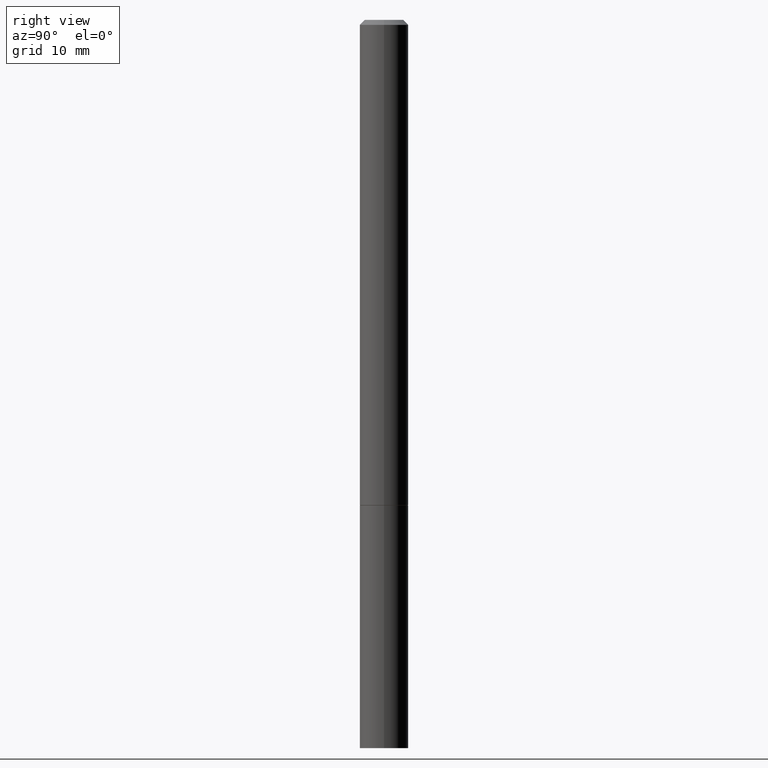
[diagram: clean part render]
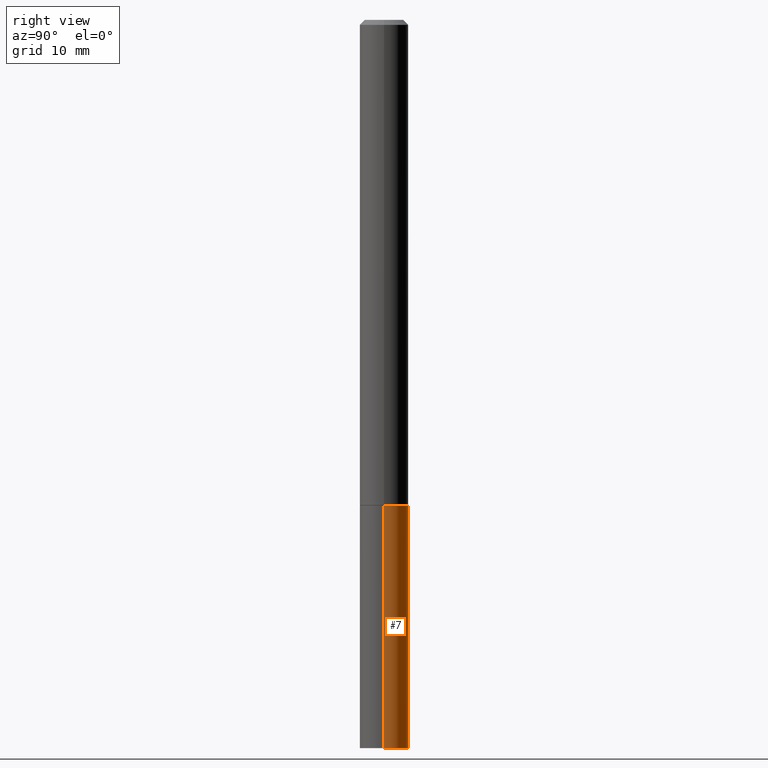
[diagram: same view with one face highlighted and labeled with its STEP entity id]
A machine part, right view. The second image highlights one B-rep face of the part: STEP entity #7.
In plain terms, the highlighted cylindrical surface (edge-blend (fillet) strip) has radius 2.5006 mm, axis along (-0, 0, 1).
Its self-contained STEP definition (entity closure, byte-faithful):
#7 = ADVANCED_FACE ( 'NONE', ( #247 ), #28, .T. ) ;
#16 = CIRCLE ( 'NONE', #225, 0.09844999999999999585 ) ;
#21 = DIRECTION ( 'NONE',  ( 1.000000000000000000, -6.982962677686266711E-15, 4.876176775795936353E-29 ) ) ;
#28 = CYLINDRICAL_SURFACE ( 'NONE', #129, 0.09844999999999999585 ) ;
#37 = EDGE_CURVE ( 'NONE', #53, #201, #44, .T. ) ;
#39 = CARTESIAN_POINT ( 'NONE',  ( 0.09844999999999999585, -1.099711877295425267E-14, -2.952799999999999869 ) ) ;
#44 = LINE ( 'NONE', #205, #187 ) ;
#47 = AXIS2_PLACEMENT_3D ( 'NONE', #185, #220, #77 ) ;
#53 = VERTEX_POINT ( 'NONE', #39 ) ;
#58 = ORIENTED_EDGE ( 'NONE', *, *, #252, .F. ) ;
#77 = DIRECTION ( 'NONE',  ( 1.000000000000000000, -6.982962677686274599E-15, 0.000000000000000000 ) ) ;
#78 = CARTESIAN_POINT ( 'NONE',  ( 4.813905344975440714E-29, -6.872981015512730918E-15, -1.968499999999999694 ) ) ;
#81 = CARTESIAN_POINT ( 'NONE',  ( -0.09844999999999999585, 6.995293233558186035E-16, -4.842691596355954042E-30 ) ) ;
#82 = VERTEX_POINT ( 'NONE', #178 ) ;
#97 = CARTESIAN_POINT ( 'NONE',  ( -0.09844999999999999585, -7.891784233068567007E-15, -1.968499999999999694 ) ) ;
#106 = VERTEX_POINT ( 'NONE', #97 ) ;
#113 = ORIENTED_EDGE ( 'NONE', *, *, #37, .F. ) ;
#120 = DIRECTION ( 'NONE',  ( -2.445468806185136877E-29, 3.491481338843145188E-15, 1.000000000000000000 ) ) ;
#128 = LINE ( 'NONE', #81, #245 ) ;
#129 = AXIS2_PLACEMENT_3D ( 'NONE', #274, #254, #21 ) ;
#135 = ORIENTED_EDGE ( 'NONE', *, *, #284, .T. ) ;
#143 = ORIENTED_EDGE ( 'NONE', *, *, #194, .T. ) ;
#178 = CARTESIAN_POINT ( 'NONE',  ( -0.09844999999999999585, -7.891784233068567007E-15, -2.952799999999999869 ) ) ;
#185 = CARTESIAN_POINT ( 'NONE',  ( 7.220980290903470182E-29, -1.030964609733603853E-14, -2.952799999999999869 ) ) ;
#187 = VECTOR ( 'NONE', #120, 39.37007874015748143 ) ;
#194 = EDGE_CURVE ( 'NONE', #82, #106, #128, .T. ) ;
#201 = VERTEX_POINT ( 'NONE', #240 ) ;
#205 = CARTESIAN_POINT ( 'NONE',  ( 0.09844999999999999585, -6.874726756182129545E-16, 4.800596035771099214E-30 ) ) ;
#207 = CIRCLE ( 'NONE', #47, 0.09844999999999999585 ) ;
#216 = DIRECTION ( 'NONE',  ( -2.445468806185136877E-29, 3.491481338843145188E-15, 1.000000000000000000 ) ) ;
#220 = DIRECTION ( 'NONE',  ( -2.445468806185136597E-29, 3.491481338843145583E-15, 1.000000000000000000 ) ) ;
#225 = AXIS2_PLACEMENT_3D ( 'NONE', #78, #297, #328 ) ;
#240 = CARTESIAN_POINT ( 'NONE',  ( 0.09844999999999999585, -7.560453691130944267E-15, -1.968499999999999694 ) ) ;
#245 = VECTOR ( 'NONE', #216, 39.37007874015748143 ) ;
#247 = FACE_OUTER_BOUND ( 'NONE', #310, .T. ) ;
#252 = EDGE_CURVE ( 'NONE', #201, #106, #16, .T. ) ;
#254 = DIRECTION ( 'NONE',  ( -2.445468806185136597E-29, 3.491481338843145583E-15, 1.000000000000000000 ) ) ;
#274 = CARTESIAN_POINT ( 'NONE',  ( 0.000000000000000000, 0.000000000000000000, 0.000000000000000000 ) ) ;
#284 = EDGE_CURVE ( 'NONE', #53, #82, #207, .T. ) ;
#297 = DIRECTION ( 'NONE',  ( -2.445468806185136597E-29, 3.491481338843145583E-15, 1.000000000000000000 ) ) ;
#310 = EDGE_LOOP ( 'NONE', ( #135, #143, #58, #113 ) ) ;
#328 = DIRECTION ( 'NONE',  ( 1.000000000000000000, -6.982962677686265922E-15, 0.000000000000000000 ) ) ;